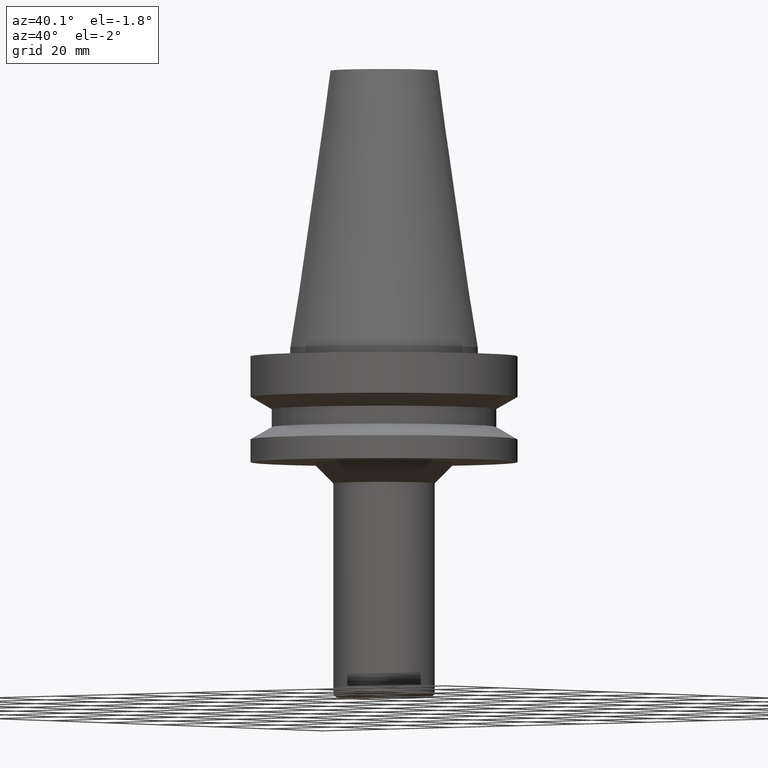
[diagram: clean part render]
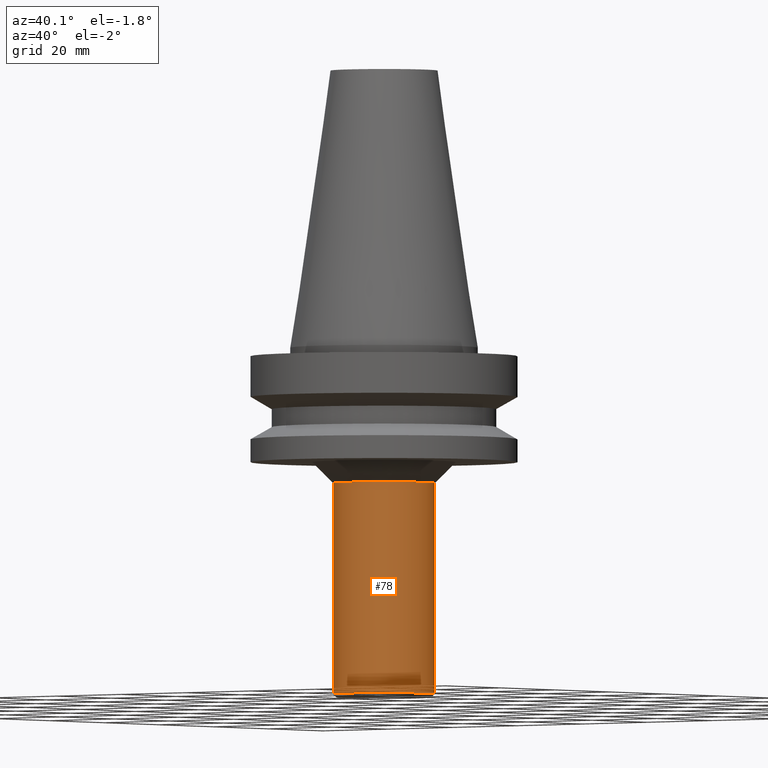
[diagram: same view with one face highlighted and labeled with its STEP entity id]
A machine part, auxiliary view. The second image highlights one B-rep face of the part: STEP entity #78.
In plain terms, the highlighted cylindrical surface (bore or boss wall) has radius 12 mm, axis along (0, 0, -1).
Its self-contained STEP definition (entity closure, byte-faithful):
#78=ADVANCED_FACE('',(#98,#99),#100,.T.);
#98=FACE_BOUND('',#138,.T.);
#99=FACE_BOUND('',#139,.T.);
#100=CYLINDRICAL_SURFACE('',#140,12.0);
#138=EDGE_LOOP('',(#184));
#139=EDGE_LOOP('',(#185));
#140=AXIS2_PLACEMENT_3D('',#186,#187,#188);
#184=ORIENTED_EDGE('',*,*,#242,.F.);
#185=ORIENTED_EDGE('',*,*,#241,.T.);
#186=CARTESIAN_POINT('',(3.48258933507529E-015,6.96517867015057E-015,-56.875));
#187=DIRECTION('',(6.12323399573676E-017,1.22464679914735E-016,-1.0));
#188=DIRECTION('',(-1.23259516440783E-032,1.0,1.22464679914735E-016));
#241=EDGE_CURVE('',#257,#257,#258,.T.);
#242=EDGE_CURVE('',#259,#259,#260,.T.);
#257=VERTEX_POINT('',#283);
#258=CIRCLE('',#284,12.0);
#259=VERTEX_POINT('',#285);
#260=CIRCLE('',#286,12.0);
#283=CARTESIAN_POINT('',(5.00574379151481E-015,12.0,-81.75));
#284=AXIS2_PLACEMENT_3D('',#312,#313,#314);
#285=CARTESIAN_POINT('',(1.95943487863577E-015,12.0,-32.0));
#286=AXIS2_PLACEMENT_3D('',#315,#316,#317);
#312=CARTESIAN_POINT('',(5.00574379151481E-015,1.00114875830296E-014,-81.75));
#313=DIRECTION('',(-6.12323399573676E-017,-1.22464679914735E-016,1.0));
#314=DIRECTION('',(-1.23259516440783E-032,1.0,1.22464679914735E-016));
#315=CARTESIAN_POINT('',(1.95943487863577E-015,3.91886975727153E-015,-32.0));
#316=DIRECTION('',(-6.12323399573676E-017,-1.22464679914735E-016,1.0));
#317=DIRECTION('',(-1.23259516440783E-032,1.0,1.22464679914735E-016));